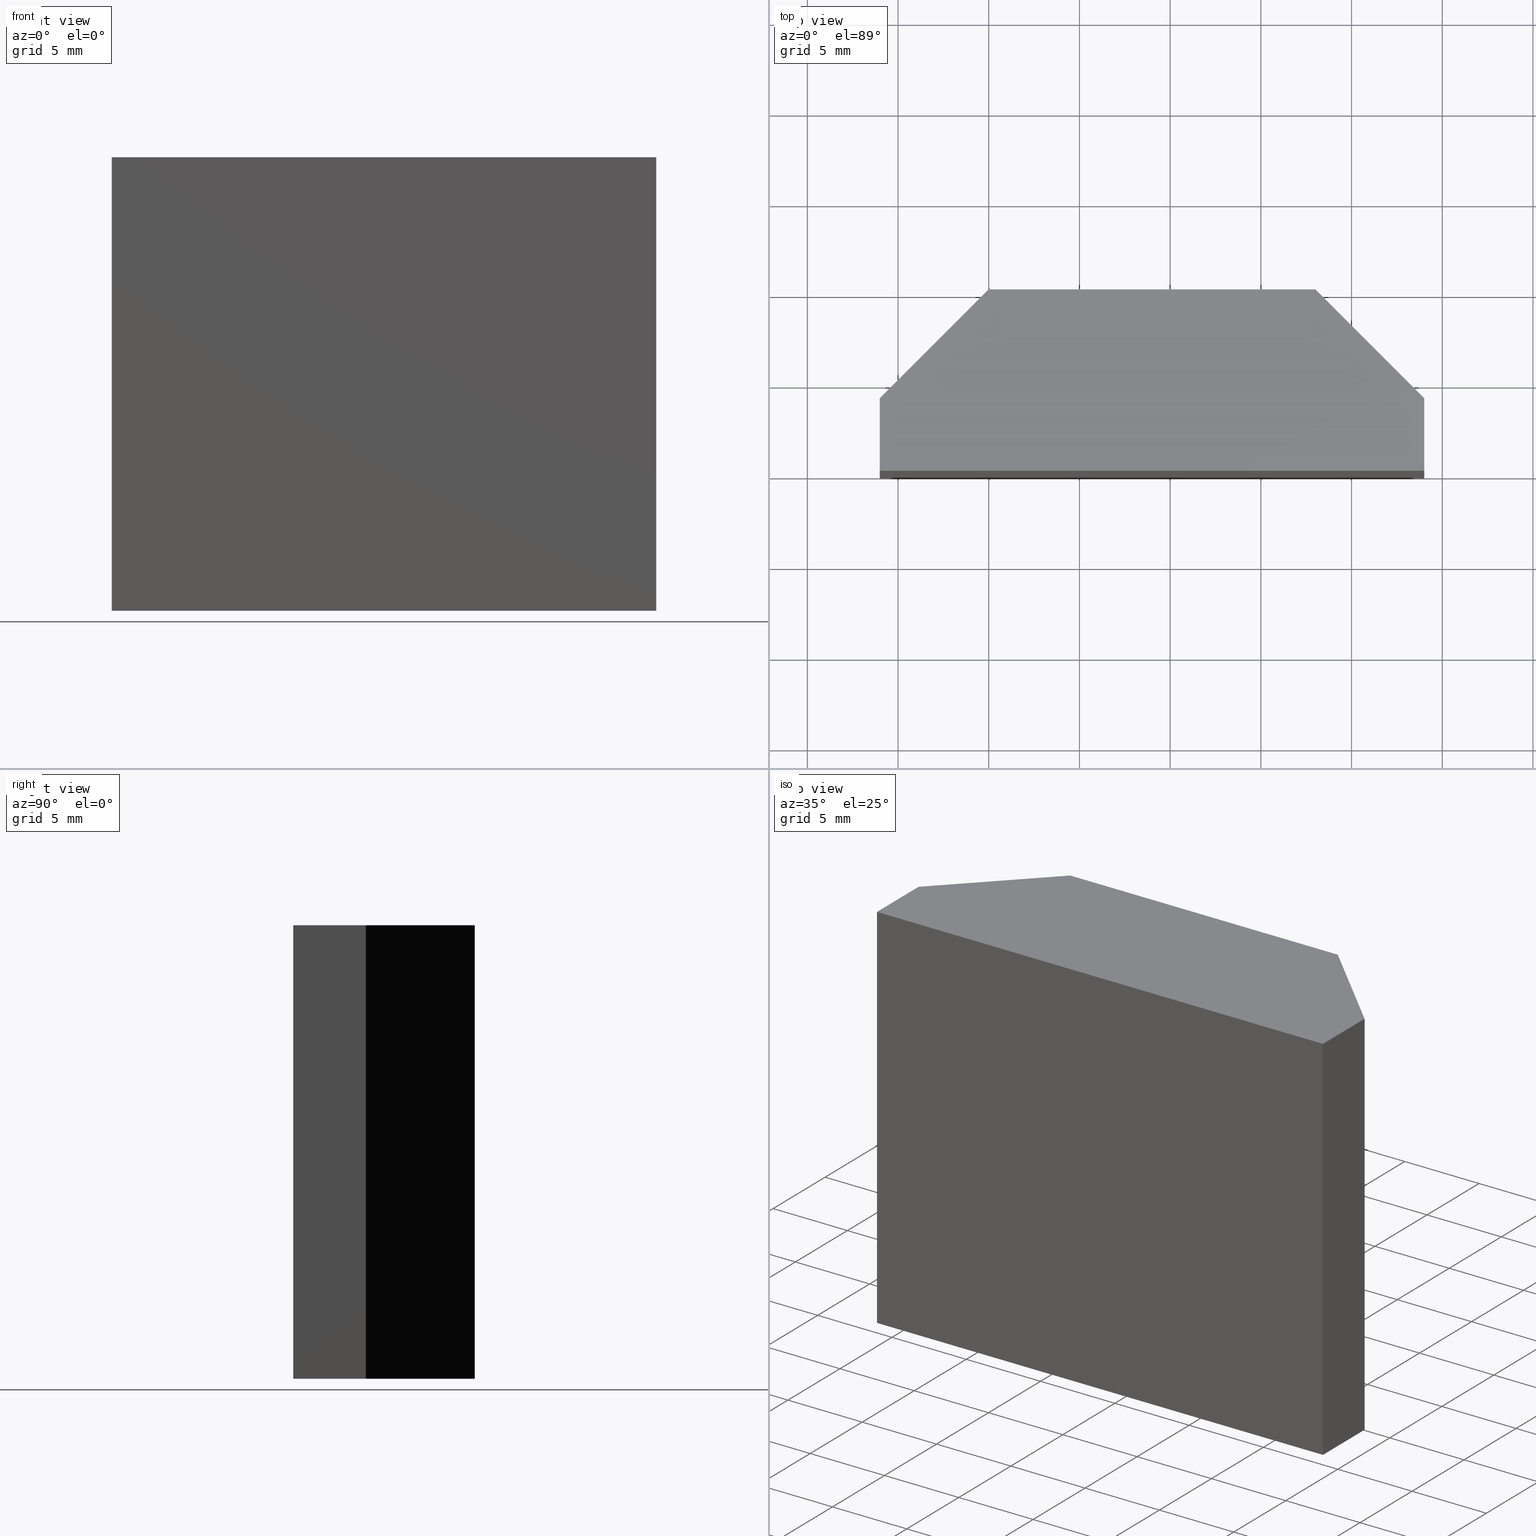
[diagram: canonical four-view strip — front | top / right | iso, engineering-drawing reading convention]
A machine part, canonical four-view strip (front | top / right | iso — engineering-drawing reading convention). The complete STEP part file that produces these views, byte-faithful:
ISO-10303-21;
HEADER;
/* Generated by software containing ST-Developer
 * from STEP Tools, Inc. (www.steptools.com) 
 */

FILE_DESCRIPTION(
/* description */ (''),
/* implementation_level */ '2;1');

FILE_NAME(
/* name */ 'E_3_01_06_00_00_WKZ-0154.stp',
/* time_stamp */ '2025-11-24T11:59:07+01:00',
/* author */ ('d.fischer'),
/* organization */ (''),
/* preprocessor_version */ 'ST-DEVELOPER v20',
/* originating_system */ 'Autodesk Inventor 2025',
/* authorisation */ '');

FILE_SCHEMA (('AUTOMOTIVE_DESIGN { 1 0 10303 214 3 1 1 }'));
ENDSEC;

DATA;
#10=MECHANICAL_DESIGN_GEOMETRIC_PRESENTATION_REPRESENTATION('',(#38,#39),
#1173);
#11=ITEM_DEFINED_TRANSFORMATION($,$,#753,#796);
#12=ITEM_DEFINED_TRANSFORMATION($,$,#772,#797);
#13=(
REPRESENTATION_RELATIONSHIP($,$,#1187,#1186)
REPRESENTATION_RELATIONSHIP_WITH_TRANSFORMATION(#11)
SHAPE_REPRESENTATION_RELATIONSHIP()
);
#14=(
REPRESENTATION_RELATIONSHIP($,$,#1188,#1186)
REPRESENTATION_RELATIONSHIP_WITH_TRANSFORMATION(#12)
SHAPE_REPRESENTATION_RELATIONSHIP()
);
#15=CONTEXT_DEPENDENT_SHAPE_REPRESENTATION(#13,#1184);
#16=CONTEXT_DEPENDENT_SHAPE_REPRESENTATION(#14,#1185);
#17=NEXT_ASSEMBLY_USAGE_OCCURRENCE('E_3_01_06_00_00_WKZ-0154-Teil2:1',
'E_3_01_06_00_00_WKZ-0154-Teil2:1','E_3_01_06_00_00_WKZ-0154-Teil2:1',#1190,
#1191,'E_3_01_06_00_00_WKZ-0154-Teil2:1');
#18=NEXT_ASSEMBLY_USAGE_OCCURRENCE('E_3_01_06_00_00_WKZ-0154-Teil1:1',
'E_3_01_06_00_00_WKZ-0154-Teil1:1','E_3_01_06_00_00_WKZ-0154-Teil1:1',#1190,
#1192,'E_3_01_06_00_00_WKZ-0154-Teil1:1');
#19=FACE_BOUND('',#99,.T.);
#20=FACE_BOUND('',#100,.T.);
#21=FACE_BOUND('',#101,.T.);
#22=FACE_BOUND('',#103,.T.);
#23=FACE_BOUND('',#104,.T.);
#24=FACE_BOUND('',#105,.T.);
#25=CIRCLE('',#774,1.);
#26=CIRCLE('',#775,1.);
#27=CIRCLE('',#777,1.);
#28=CIRCLE('',#778,1.);
#29=CIRCLE('',#780,1.);
#30=CIRCLE('',#781,1.);
#31=CYLINDRICAL_SURFACE('',#773,1.);
#32=CYLINDRICAL_SURFACE('',#776,1.);
#33=CYLINDRICAL_SURFACE('',#779,1.);
#34=SHAPE_REPRESENTATION_RELATIONSHIP('SRR','None',#1187,#36);
#35=SHAPE_REPRESENTATION_RELATIONSHIP('SRR','None',#1188,#37);
#36=ADVANCED_BREP_SHAPE_REPRESENTATION('',(#40),#1171);
#37=ADVANCED_BREP_SHAPE_REPRESENTATION('',(#41),#1172);
#38=STYLED_ITEM('',(#716),#40);
#39=STYLED_ITEM('',(#717),#41);
#40=MANIFOLD_SOLID_BREP('Volumenk\X\F6rper1',#688);
#41=MANIFOLD_SOLID_BREP('Volumenk\X\F6rper1',#689);
#42=FACE_OUTER_BOUND('',#77,.T.);
#43=FACE_OUTER_BOUND('',#78,.T.);
#44=FACE_OUTER_BOUND('',#79,.T.);
#45=FACE_OUTER_BOUND('',#80,.T.);
#46=FACE_OUTER_BOUND('',#81,.T.);
#47=FACE_OUTER_BOUND('',#82,.T.);
#48=FACE_OUTER_BOUND('',#83,.T.);
#49=FACE_OUTER_BOUND('',#84,.T.);
#50=FACE_OUTER_BOUND('',#85,.T.);
#51=FACE_OUTER_BOUND('',#86,.T.);
#52=FACE_OUTER_BOUND('',#87,.T.);
#53=FACE_OUTER_BOUND('',#88,.T.);
#54=FACE_OUTER_BOUND('',#89,.T.);
#55=FACE_OUTER_BOUND('',#90,.T.);
#56=FACE_OUTER_BOUND('',#91,.T.);
#57=FACE_OUTER_BOUND('',#92,.T.);
#58=FACE_OUTER_BOUND('',#93,.T.);
#59=FACE_OUTER_BOUND('',#94,.T.);
#60=FACE_OUTER_BOUND('',#95,.T.);
#61=FACE_OUTER_BOUND('',#96,.T.);
#62=FACE_OUTER_BOUND('',#97,.T.);
#63=FACE_OUTER_BOUND('',#98,.T.);
#64=FACE_OUTER_BOUND('',#102,.T.);
#65=FACE_OUTER_BOUND('',#106,.T.);
#66=FACE_OUTER_BOUND('',#107,.T.);
#67=FACE_OUTER_BOUND('',#108,.T.);
#68=FACE_OUTER_BOUND('',#109,.T.);
#69=FACE_OUTER_BOUND('',#110,.T.);
#70=FACE_OUTER_BOUND('',#111,.T.);
#71=FACE_OUTER_BOUND('',#112,.T.);
#72=FACE_OUTER_BOUND('',#113,.T.);
#73=FACE_OUTER_BOUND('',#114,.T.);
#74=FACE_OUTER_BOUND('',#115,.T.);
#75=FACE_OUTER_BOUND('',#116,.T.);
#76=FACE_OUTER_BOUND('',#117,.T.);
#77=EDGE_LOOP('',(#439,#440,#441,#442));
#78=EDGE_LOOP('',(#443,#444,#445,#446));
#79=EDGE_LOOP('',(#447,#448,#449,#450));
#80=EDGE_LOOP('',(#451,#452,#453,#454));
#81=EDGE_LOOP('',(#455,#456,#457,#458));
#82=EDGE_LOOP('',(#459,#460,#461,#462));
#83=EDGE_LOOP('',(#463,#464,#465,#466));
#84=EDGE_LOOP('',(#467,#468,#469,#470));
#85=EDGE_LOOP('',(#471,#472,#473,#474,#475,#476,#477,#478));
#86=EDGE_LOOP('',(#479,#480,#481,#482,#483,#484,#485,#486,#487,#488,#489,
#490));
#87=EDGE_LOOP('',(#491,#492,#493,#494,#495,#496,#497,#498));
#88=EDGE_LOOP('',(#499,#500,#501,#502));
#89=EDGE_LOOP('',(#503,#504,#505,#506));
#90=EDGE_LOOP('',(#507,#508,#509,#510));
#91=EDGE_LOOP('',(#511,#512,#513,#514,#515));
#92=EDGE_LOOP('',(#516,#517,#518,#519));
#93=EDGE_LOOP('',(#520,#521,#522,#523,#524));
#94=EDGE_LOOP('',(#525,#526,#527,#528,#529,#530));
#95=EDGE_LOOP('',(#531,#532,#533,#534));
#96=EDGE_LOOP('',(#535,#536,#537,#538));
#97=EDGE_LOOP('',(#539,#540,#541,#542));
#98=EDGE_LOOP('',(#543,#544,#545,#546));
#99=EDGE_LOOP('',(#547));
#100=EDGE_LOOP('',(#548));
#101=EDGE_LOOP('',(#549));
#102=EDGE_LOOP('',(#550,#551,#552,#553));
#103=EDGE_LOOP('',(#554));
#104=EDGE_LOOP('',(#555));
#105=EDGE_LOOP('',(#556));
#106=EDGE_LOOP('',(#557,#558,#559,#560));
#107=EDGE_LOOP('',(#561,#562,#563,#564));
#108=EDGE_LOOP('',(#565,#566,#567,#568));
#109=EDGE_LOOP('',(#569,#570,#571,#572));
#110=EDGE_LOOP('',(#573,#574,#575,#576));
#111=EDGE_LOOP('',(#577,#578,#579,#580));
#112=EDGE_LOOP('',(#581,#582,#583,#584));
#113=EDGE_LOOP('',(#585,#586,#587,#588));
#114=EDGE_LOOP('',(#589,#590,#591,#592,#593,#594,#595,#596,#597,#598,#599,
#600));
#115=EDGE_LOOP('',(#601,#602,#603,#604));
#116=EDGE_LOOP('',(#605,#606,#607,#608,#609,#610,#611,#612));
#117=EDGE_LOOP('',(#613,#614,#615,#616,#617,#618,#619,#620));
#118=LINE('',#980,#203);
#119=LINE('',#982,#204);
#120=LINE('',#984,#205);
#121=LINE('',#985,#206);
#122=LINE('',#989,#207);
#123=LINE('',#991,#208);
#124=LINE('',#993,#209);
#125=LINE('',#994,#210);
#126=LINE('',#997,#211);
#127=LINE('',#999,#212);
#128=LINE('',#1000,#213);
#129=LINE('',#1003,#214);
#130=LINE('',#1005,#215);
#131=LINE('',#1006,#216);
#132=LINE('',#1009,#217);
#133=LINE('',#1010,#218);
#134=LINE('',#1013,#219);
#135=LINE('',#1014,#220);
#136=LINE('',#1017,#221);
#137=LINE('',#1018,#222);
#138=LINE('',#1021,#223);
#139=LINE('',#1022,#224);
#140=LINE('',#1025,#225);
#141=LINE('',#1027,#226);
#142=LINE('',#1029,#227);
#143=LINE('',#1031,#228);
#144=LINE('',#1032,#229);
#145=LINE('',#1035,#230);
#146=LINE('',#1036,#231);
#147=LINE('',#1038,#232);
#148=LINE('',#1039,#233);
#149=LINE('',#1042,#234);
#150=LINE('',#1044,#235);
#151=LINE('',#1045,#236);
#152=LINE('',#1048,#237);
#153=LINE('',#1050,#238);
#154=LINE('',#1051,#239);
#155=LINE('',#1054,#240);
#156=LINE('',#1055,#241);
#157=LINE('',#1058,#242);
#158=LINE('',#1059,#243);
#159=LINE('',#1062,#244);
#160=LINE('',#1063,#245);
#161=LINE('',#1066,#246);
#162=LINE('',#1067,#247);
#163=LINE('',#1069,#248);
#164=LINE('',#1076,#249);
#165=LINE('',#1082,#250);
#166=LINE('',#1088,#251);
#167=LINE('',#1093,#252);
#168=LINE('',#1095,#253);
#169=LINE('',#1097,#254);
#170=LINE('',#1098,#255);
#171=LINE('',#1102,#256);
#172=LINE('',#1104,#257);
#173=LINE('',#1106,#258);
#174=LINE('',#1107,#259);
#175=LINE('',#1110,#260);
#176=LINE('',#1112,#261);
#177=LINE('',#1113,#262);
#178=LINE('',#1116,#263);
#179=LINE('',#1117,#264);
#180=LINE('',#1120,#265);
#181=LINE('',#1122,#266);
#182=LINE('',#1123,#267);
#183=LINE('',#1127,#268);
#184=LINE('',#1129,#269);
#185=LINE('',#1131,#270);
#186=LINE('',#1132,#271);
#187=LINE('',#1135,#272);
#188=LINE('',#1137,#273);
#189=LINE('',#1138,#274);
#190=LINE('',#1141,#275);
#191=LINE('',#1142,#276);
#192=LINE('',#1145,#277);
#193=LINE('',#1146,#278);
#194=LINE('',#1149,#279);
#195=LINE('',#1150,#280);
#196=LINE('',#1153,#281);
#197=LINE('',#1155,#282);
#198=LINE('',#1156,#283);
#199=LINE('',#1157,#284);
#200=LINE('',#1158,#285);
#201=LINE('',#1160,#286);
#202=LINE('',#1161,#287);
#203=VECTOR('',#804,10.);
#204=VECTOR('',#805,10.);
#205=VECTOR('',#806,10.);
#206=VECTOR('',#807,10.);
#207=VECTOR('',#810,10.);
#208=VECTOR('',#811,10.);
#209=VECTOR('',#812,10.);
#210=VECTOR('',#813,10.);
#211=VECTOR('',#816,10.);
#212=VECTOR('',#817,10.);
#213=VECTOR('',#818,10.);
#214=VECTOR('',#821,10.);
#215=VECTOR('',#822,10.);
#216=VECTOR('',#823,10.);
#217=VECTOR('',#826,10.);
#218=VECTOR('',#827,10.);
#219=VECTOR('',#830,10.);
#220=VECTOR('',#831,10.);
#221=VECTOR('',#834,10.);
#222=VECTOR('',#835,10.);
#223=VECTOR('',#838,10.);
#224=VECTOR('',#839,10.);
#225=VECTOR('',#842,10.);
#226=VECTOR('',#843,10.);
#227=VECTOR('',#844,10.);
#228=VECTOR('',#845,10.);
#229=VECTOR('',#846,10.);
#230=VECTOR('',#849,10.);
#231=VECTOR('',#850,10.);
#232=VECTOR('',#851,10.);
#233=VECTOR('',#852,10.);
#234=VECTOR('',#855,10.);
#235=VECTOR('',#856,10.);
#236=VECTOR('',#857,10.);
#237=VECTOR('',#860,10.);
#238=VECTOR('',#861,10.);
#239=VECTOR('',#862,10.);
#240=VECTOR('',#865,10.);
#241=VECTOR('',#866,10.);
#242=VECTOR('',#869,10.);
#243=VECTOR('',#870,10.);
#244=VECTOR('',#873,10.);
#245=VECTOR('',#874,10.);
#246=VECTOR('',#877,10.);
#247=VECTOR('',#878,10.);
#248=VECTOR('',#881,10.);
#249=VECTOR('',#890,1.);
#250=VECTOR('',#897,1.);
#251=VECTOR('',#904,1.);
#252=VECTOR('',#909,10.);
#253=VECTOR('',#910,10.);
#254=VECTOR('',#911,10.);
#255=VECTOR('',#912,10.);
#256=VECTOR('',#915,10.);
#257=VECTOR('',#916,10.);
#258=VECTOR('',#917,10.);
#259=VECTOR('',#918,10.);
#260=VECTOR('',#921,10.);
#261=VECTOR('',#922,10.);
#262=VECTOR('',#923,10.);
#263=VECTOR('',#926,10.);
#264=VECTOR('',#927,10.);
#265=VECTOR('',#930,10.);
#266=VECTOR('',#931,10.);
#267=VECTOR('',#932,10.);
#268=VECTOR('',#935,10.);
#269=VECTOR('',#936,10.);
#270=VECTOR('',#937,10.);
#271=VECTOR('',#938,10.);
#272=VECTOR('',#941,10.);
#273=VECTOR('',#942,10.);
#274=VECTOR('',#943,10.);
#275=VECTOR('',#946,10.);
#276=VECTOR('',#947,10.);
#277=VECTOR('',#950,10.);
#278=VECTOR('',#951,10.);
#279=VECTOR('',#954,10.);
#280=VECTOR('',#955,10.);
#281=VECTOR('',#958,10.);
#282=VECTOR('',#959,10.);
#283=VECTOR('',#960,10.);
#284=VECTOR('',#961,10.);
#285=VECTOR('',#962,10.);
#286=VECTOR('',#965,10.);
#287=VECTOR('',#966,10.);
#288=VERTEX_POINT('',#978);
#289=VERTEX_POINT('',#979);
#290=VERTEX_POINT('',#981);
#291=VERTEX_POINT('',#983);
#292=VERTEX_POINT('',#987);
#293=VERTEX_POINT('',#988);
#294=VERTEX_POINT('',#990);
#295=VERTEX_POINT('',#992);
#296=VERTEX_POINT('',#996);
#297=VERTEX_POINT('',#998);
#298=VERTEX_POINT('',#1002);
#299=VERTEX_POINT('',#1004);
#300=VERTEX_POINT('',#1008);
#301=VERTEX_POINT('',#1012);
#302=VERTEX_POINT('',#1016);
#303=VERTEX_POINT('',#1020);
#304=VERTEX_POINT('',#1024);
#305=VERTEX_POINT('',#1026);
#306=VERTEX_POINT('',#1028);
#307=VERTEX_POINT('',#1030);
#308=VERTEX_POINT('',#1034);
#309=VERTEX_POINT('',#1037);
#310=VERTEX_POINT('',#1041);
#311=VERTEX_POINT('',#1043);
#312=VERTEX_POINT('',#1047);
#313=VERTEX_POINT('',#1049);
#314=VERTEX_POINT('',#1053);
#315=VERTEX_POINT('',#1057);
#316=VERTEX_POINT('',#1061);
#317=VERTEX_POINT('',#1065);
#318=VERTEX_POINT('',#1073);
#319=VERTEX_POINT('',#1075);
#320=VERTEX_POINT('',#1079);
#321=VERTEX_POINT('',#1081);
#322=VERTEX_POINT('',#1085);
#323=VERTEX_POINT('',#1087);
#324=VERTEX_POINT('',#1091);
#325=VERTEX_POINT('',#1092);
#326=VERTEX_POINT('',#1094);
#327=VERTEX_POINT('',#1096);
#328=VERTEX_POINT('',#1100);
#329=VERTEX_POINT('',#1101);
#330=VERTEX_POINT('',#1103);
#331=VERTEX_POINT('',#1105);
#332=VERTEX_POINT('',#1109);
#333=VERTEX_POINT('',#1111);
#334=VERTEX_POINT('',#1115);
#335=VERTEX_POINT('',#1119);
#336=VERTEX_POINT('',#1121);
#337=VERTEX_POINT('',#1125);
#338=VERTEX_POINT('',#1126);
#339=VERTEX_POINT('',#1128);
#340=VERTEX_POINT('',#1130);
#341=VERTEX_POINT('',#1134);
#342=VERTEX_POINT('',#1136);
#343=VERTEX_POINT('',#1140);
#344=VERTEX_POINT('',#1144);
#345=VERTEX_POINT('',#1148);
#346=VERTEX_POINT('',#1152);
#347=VERTEX_POINT('',#1154);
#348=EDGE_CURVE('',#288,#289,#118,.T.);
#349=EDGE_CURVE('',#290,#288,#119,.T.);
#350=EDGE_CURVE('',#291,#290,#120,.T.);
#351=EDGE_CURVE('',#291,#289,#121,.T.);
#352=EDGE_CURVE('',#292,#293,#122,.T.);
#353=EDGE_CURVE('',#294,#292,#123,.T.);
#354=EDGE_CURVE('',#295,#294,#124,.T.);
#355=EDGE_CURVE('',#293,#295,#125,.T.);
#356=EDGE_CURVE('',#289,#296,#126,.T.);
#357=EDGE_CURVE('',#297,#296,#127,.T.);
#358=EDGE_CURVE('',#288,#297,#128,.T.);
#359=EDGE_CURVE('',#298,#295,#129,.T.);
#360=EDGE_CURVE('',#299,#298,#130,.T.);
#361=EDGE_CURVE('',#299,#293,#131,.T.);
#362=EDGE_CURVE('',#300,#297,#132,.T.);
#363=EDGE_CURVE('',#290,#300,#133,.T.);
#364=EDGE_CURVE('',#301,#294,#134,.T.);
#365=EDGE_CURVE('',#298,#301,#135,.T.);
#366=EDGE_CURVE('',#302,#300,#136,.T.);
#367=EDGE_CURVE('',#291,#302,#137,.T.);
#368=EDGE_CURVE('',#303,#292,#138,.T.);
#369=EDGE_CURVE('',#301,#303,#139,.T.);
#370=EDGE_CURVE('',#296,#304,#140,.T.);
#371=EDGE_CURVE('',#305,#304,#141,.T.);
#372=EDGE_CURVE('',#306,#305,#142,.T.);
#373=EDGE_CURVE('',#307,#306,#143,.T.);
#374=EDGE_CURVE('',#307,#302,#144,.T.);
#375=EDGE_CURVE('',#308,#299,#145,.T.);
#376=EDGE_CURVE('',#304,#308,#146,.T.);
#377=EDGE_CURVE('',#307,#309,#147,.T.);
#378=EDGE_CURVE('',#303,#309,#148,.T.);
#379=EDGE_CURVE('',#310,#309,#149,.T.);
#380=EDGE_CURVE('',#311,#310,#150,.T.);
#381=EDGE_CURVE('',#308,#311,#151,.T.);
#382=EDGE_CURVE('',#312,#305,#152,.T.);
#383=EDGE_CURVE('',#312,#313,#153,.T.);
#384=EDGE_CURVE('',#313,#306,#154,.T.);
#385=EDGE_CURVE('',#314,#304,#155,.T.);
#386=EDGE_CURVE('',#314,#312,#156,.T.);
#387=EDGE_CURVE('',#313,#315,#157,.T.);
#388=EDGE_CURVE('',#315,#307,#158,.T.);
#389=EDGE_CURVE('',#316,#311,#159,.T.);
#390=EDGE_CURVE('',#316,#314,#160,.T.);
#391=EDGE_CURVE('',#317,#310,#161,.T.);
#392=EDGE_CURVE('',#317,#316,#162,.T.);
#393=EDGE_CURVE('',#315,#317,#163,.T.);
#394=EDGE_CURVE('',#318,#318,#25,.T.);
#395=EDGE_CURVE('',#318,#319,#164,.T.);
#396=EDGE_CURVE('',#319,#319,#26,.T.);
#397=EDGE_CURVE('',#320,#320,#27,.T.);
#398=EDGE_CURVE('',#320,#321,#165,.T.);
#399=EDGE_CURVE('',#321,#321,#28,.T.);
#400=EDGE_CURVE('',#322,#322,#29,.T.);
#401=EDGE_CURVE('',#322,#323,#166,.T.);
#402=EDGE_CURVE('',#323,#323,#30,.T.);
#403=EDGE_CURVE('',#324,#325,#167,.T.);
#404=EDGE_CURVE('',#326,#324,#168,.T.);
#405=EDGE_CURVE('',#327,#326,#169,.T.);
#406=EDGE_CURVE('',#325,#327,#170,.T.);
#407=EDGE_CURVE('',#328,#329,#171,.T.);
#408=EDGE_CURVE('',#330,#328,#172,.T.);
#409=EDGE_CURVE('',#331,#330,#173,.T.);
#410=EDGE_CURVE('',#329,#331,#174,.T.);
#411=EDGE_CURVE('',#324,#332,#175,.T.);
#412=EDGE_CURVE('',#332,#333,#176,.T.);
#413=EDGE_CURVE('',#326,#333,#177,.T.);
#414=EDGE_CURVE('',#325,#334,#178,.T.);
#415=EDGE_CURVE('',#334,#332,#179,.T.);
#416=EDGE_CURVE('',#335,#330,#180,.T.);
#417=EDGE_CURVE('',#335,#336,#181,.T.);
#418=EDGE_CURVE('',#336,#331,#182,.T.);
#419=EDGE_CURVE('',#337,#338,#183,.T.);
#420=EDGE_CURVE('',#339,#338,#184,.T.);
#421=EDGE_CURVE('',#339,#340,#185,.T.);
#422=EDGE_CURVE('',#340,#337,#186,.T.);
#423=EDGE_CURVE('',#338,#341,#187,.T.);
#424=EDGE_CURVE('',#342,#341,#188,.T.);
#425=EDGE_CURVE('',#342,#339,#189,.T.);
#426=EDGE_CURVE('',#327,#343,#190,.T.);
#427=EDGE_CURVE('',#343,#334,#191,.T.);
#428=EDGE_CURVE('',#344,#328,#192,.T.);
#429=EDGE_CURVE('',#344,#335,#193,.T.);
#430=EDGE_CURVE('',#345,#329,#194,.T.);
#431=EDGE_CURVE('',#345,#344,#195,.T.);
#432=EDGE_CURVE('',#333,#346,#196,.T.);
#433=EDGE_CURVE('',#347,#346,#197,.T.);
#434=EDGE_CURVE('',#347,#345,#198,.T.);
#435=EDGE_CURVE('',#336,#342,#199,.T.);
#436=EDGE_CURVE('',#341,#343,#200,.T.);
#437=EDGE_CURVE('',#346,#337,#201,.T.);
#438=EDGE_CURVE('',#340,#347,#202,.T.);
#439=ORIENTED_EDGE('',*,*,#348,.F.);
#440=ORIENTED_EDGE('',*,*,#349,.F.);
#441=ORIENTED_EDGE('',*,*,#350,.F.);
#442=ORIENTED_EDGE('',*,*,#351,.T.);
#443=ORIENTED_EDGE('',*,*,#352,.F.);
#444=ORIENTED_EDGE('',*,*,#353,.F.);
#445=ORIENTED_EDGE('',*,*,#354,.F.);
#446=ORIENTED_EDGE('',*,*,#355,.F.);
#447=ORIENTED_EDGE('',*,*,#348,.T.);
#448=ORIENTED_EDGE('',*,*,#356,.T.);
#449=ORIENTED_EDGE('',*,*,#357,.F.);
#450=ORIENTED_EDGE('',*,*,#358,.F.);
#451=ORIENTED_EDGE('',*,*,#355,.T.);
#452=ORIENTED_EDGE('',*,*,#359,.F.);
#453=ORIENTED_EDGE('',*,*,#360,.F.);
#454=ORIENTED_EDGE('',*,*,#361,.T.);
#455=ORIENTED_EDGE('',*,*,#349,.T.);
#456=ORIENTED_EDGE('',*,*,#358,.T.);
#457=ORIENTED_EDGE('',*,*,#362,.F.);
#458=ORIENTED_EDGE('',*,*,#363,.F.);
#459=ORIENTED_EDGE('',*,*,#354,.T.);
#460=ORIENTED_EDGE('',*,*,#364,.F.);
#461=ORIENTED_EDGE('',*,*,#365,.F.);
#462=ORIENTED_EDGE('',*,*,#359,.T.);
#463=ORIENTED_EDGE('',*,*,#350,.T.);
#464=ORIENTED_EDGE('',*,*,#363,.T.);
#465=ORIENTED_EDGE('',*,*,#366,.F.);
#466=ORIENTED_EDGE('',*,*,#367,.F.);
#467=ORIENTED_EDGE('',*,*,#353,.T.);
#468=ORIENTED_EDGE('',*,*,#368,.F.);
#469=ORIENTED_EDGE('',*,*,#369,.F.);
#470=ORIENTED_EDGE('',*,*,#364,.T.);
#471=ORIENTED_EDGE('',*,*,#366,.T.);
#472=ORIENTED_EDGE('',*,*,#362,.T.);
#473=ORIENTED_EDGE('',*,*,#357,.T.);
#474=ORIENTED_EDGE('',*,*,#370,.T.);
#475=ORIENTED_EDGE('',*,*,#371,.F.);
#476=ORIENTED_EDGE('',*,*,#372,.F.);
#477=ORIENTED_EDGE('',*,*,#373,.F.);
#478=ORIENTED_EDGE('',*,*,#374,.T.);
#479=ORIENTED_EDGE('',*,*,#361,.F.);
#480=ORIENTED_EDGE('',*,*,#375,.F.);
#481=ORIENTED_EDGE('',*,*,#376,.F.);
#482=ORIENTED_EDGE('',*,*,#370,.F.);
#483=ORIENTED_EDGE('',*,*,#356,.F.);
#484=ORIENTED_EDGE('',*,*,#351,.F.);
#485=ORIENTED_EDGE('',*,*,#367,.T.);
#486=ORIENTED_EDGE('',*,*,#374,.F.);
#487=ORIENTED_EDGE('',*,*,#377,.T.);
#488=ORIENTED_EDGE('',*,*,#378,.F.);
#489=ORIENTED_EDGE('',*,*,#368,.T.);
#490=ORIENTED_EDGE('',*,*,#352,.T.);
#491=ORIENTED_EDGE('',*,*,#375,.T.);
#492=ORIENTED_EDGE('',*,*,#360,.T.);
#493=ORIENTED_EDGE('',*,*,#365,.T.);
#494=ORIENTED_EDGE('',*,*,#369,.T.);
#495=ORIENTED_EDGE('',*,*,#378,.T.);
#496=ORIENTED_EDGE('',*,*,#379,.F.);
#497=ORIENTED_EDGE('',*,*,#380,.F.);
#498=ORIENTED_EDGE('',*,*,#381,.F.);
#499=ORIENTED_EDGE('',*,*,#372,.T.);
#500=ORIENTED_EDGE('',*,*,#382,.F.);
#501=ORIENTED_EDGE('',*,*,#383,.T.);
#502=ORIENTED_EDGE('',*,*,#384,.T.);
#503=ORIENTED_EDGE('',*,*,#371,.T.);
#504=ORIENTED_EDGE('',*,*,#385,.F.);
#505=ORIENTED_EDGE('',*,*,#386,.T.);
#506=ORIENTED_EDGE('',*,*,#382,.T.);
#507=ORIENTED_EDGE('',*,*,#373,.T.);
#508=ORIENTED_EDGE('',*,*,#384,.F.);
#509=ORIENTED_EDGE('',*,*,#387,.T.);
#510=ORIENTED_EDGE('',*,*,#388,.T.);
#511=ORIENTED_EDGE('',*,*,#381,.T.);
#512=ORIENTED_EDGE('',*,*,#389,.F.);
#513=ORIENTED_EDGE('',*,*,#390,.T.);
#514=ORIENTED_EDGE('',*,*,#385,.T.);
#515=ORIENTED_EDGE('',*,*,#376,.T.);
#516=ORIENTED_EDGE('',*,*,#380,.T.);
#517=ORIENTED_EDGE('',*,*,#391,.F.);
#518=ORIENTED_EDGE('',*,*,#392,.T.);
#519=ORIENTED_EDGE('',*,*,#389,.T.);
#520=ORIENTED_EDGE('',*,*,#379,.T.);
#521=ORIENTED_EDGE('',*,*,#377,.F.);
#522=ORIENTED_EDGE('',*,*,#388,.F.);
#523=ORIENTED_EDGE('',*,*,#393,.T.);
#524=ORIENTED_EDGE('',*,*,#391,.T.);
#525=ORIENTED_EDGE('',*,*,#393,.F.);
#526=ORIENTED_EDGE('',*,*,#387,.F.);
#527=ORIENTED_EDGE('',*,*,#383,.F.);
#528=ORIENTED_EDGE('',*,*,#386,.F.);
#529=ORIENTED_EDGE('',*,*,#390,.F.);
#530=ORIENTED_EDGE('',*,*,#392,.F.);
#531=ORIENTED_EDGE('',*,*,#394,.F.);
#532=ORIENTED_EDGE('',*,*,#395,.T.);
#533=ORIENTED_EDGE('',*,*,#396,.F.);
#534=ORIENTED_EDGE('',*,*,#395,.F.);
#535=ORIENTED_EDGE('',*,*,#397,.F.);
#536=ORIENTED_EDGE('',*,*,#398,.T.);
#537=ORIENTED_EDGE('',*,*,#399,.F.);
#538=ORIENTED_EDGE('',*,*,#398,.F.);
#539=ORIENTED_EDGE('',*,*,#400,.F.);
#540=ORIENTED_EDGE('',*,*,#401,.T.);
#541=ORIENTED_EDGE('',*,*,#402,.F.);
#542=ORIENTED_EDGE('',*,*,#401,.F.);
#543=ORIENTED_EDGE('',*,*,#403,.F.);
#544=ORIENTED_EDGE('',*,*,#404,.F.);
#545=ORIENTED_EDGE('',*,*,#405,.F.);
#546=ORIENTED_EDGE('',*,*,#406,.F.);
#547=ORIENTED_EDGE('',*,*,#394,.T.);
#548=ORIENTED_EDGE('',*,*,#397,.T.);
#549=ORIENTED_EDGE('',*,*,#400,.T.);
#550=ORIENTED_EDGE('',*,*,#407,.F.);
#551=ORIENTED_EDGE('',*,*,#408,.F.);
#552=ORIENTED_EDGE('',*,*,#409,.F.);
#553=ORIENTED_EDGE('',*,*,#410,.F.);
#554=ORIENTED_EDGE('',*,*,#396,.T.);
#555=ORIENTED_EDGE('',*,*,#399,.T.);
#556=ORIENTED_EDGE('',*,*,#402,.T.);
#557=ORIENTED_EDGE('',*,*,#404,.T.);
#558=ORIENTED_EDGE('',*,*,#411,.T.);
#559=ORIENTED_EDGE('',*,*,#412,.T.);
#560=ORIENTED_EDGE('',*,*,#413,.F.);
#561=ORIENTED_EDGE('',*,*,#403,.T.);
#562=ORIENTED_EDGE('',*,*,#414,.T.);
#563=ORIENTED_EDGE('',*,*,#415,.T.);
#564=ORIENTED_EDGE('',*,*,#411,.F.);
#565=ORIENTED_EDGE('',*,*,#409,.T.);
#566=ORIENTED_EDGE('',*,*,#416,.F.);
#567=ORIENTED_EDGE('',*,*,#417,.T.);
#568=ORIENTED_EDGE('',*,*,#418,.T.);
#569=ORIENTED_EDGE('',*,*,#419,.T.);
#570=ORIENTED_EDGE('',*,*,#420,.F.);
#571=ORIENTED_EDGE('',*,*,#421,.T.);
#572=ORIENTED_EDGE('',*,*,#422,.T.);
#573=ORIENTED_EDGE('',*,*,#423,.T.);
#574=ORIENTED_EDGE('',*,*,#424,.F.);
#575=ORIENTED_EDGE('',*,*,#425,.T.);
#576=ORIENTED_EDGE('',*,*,#420,.T.);
#577=ORIENTED_EDGE('',*,*,#406,.T.);
#578=ORIENTED_EDGE('',*,*,#426,.T.);
#579=ORIENTED_EDGE('',*,*,#427,.T.);
#580=ORIENTED_EDGE('',*,*,#414,.F.);
#581=ORIENTED_EDGE('',*,*,#408,.T.);
#582=ORIENTED_EDGE('',*,*,#428,.F.);
#583=ORIENTED_EDGE('',*,*,#429,.T.);
#584=ORIENTED_EDGE('',*,*,#416,.T.);
#585=ORIENTED_EDGE('',*,*,#407,.T.);
#586=ORIENTED_EDGE('',*,*,#430,.F.);
#587=ORIENTED_EDGE('',*,*,#431,.T.);
#588=ORIENTED_EDGE('',*,*,#428,.T.);
#589=ORIENTED_EDGE('',*,*,#432,.T.);
#590=ORIENTED_EDGE('',*,*,#433,.F.);
#591=ORIENTED_EDGE('',*,*,#434,.T.);
#592=ORIENTED_EDGE('',*,*,#430,.T.);
#593=ORIENTED_EDGE('',*,*,#410,.T.);
#594=ORIENTED_EDGE('',*,*,#418,.F.);
#595=ORIENTED_EDGE('',*,*,#435,.T.);
#596=ORIENTED_EDGE('',*,*,#424,.T.);
#597=ORIENTED_EDGE('',*,*,#436,.T.);
#598=ORIENTED_EDGE('',*,*,#426,.F.);
#599=ORIENTED_EDGE('',*,*,#405,.T.);
#600=ORIENTED_EDGE('',*,*,#413,.T.);
#601=ORIENTED_EDGE('',*,*,#437,.T.);
#602=ORIENTED_EDGE('',*,*,#422,.F.);
#603=ORIENTED_EDGE('',*,*,#438,.T.);
#604=ORIENTED_EDGE('',*,*,#433,.T.);
#605=ORIENTED_EDGE('',*,*,#421,.F.);
#606=ORIENTED_EDGE('',*,*,#425,.F.);
#607=ORIENTED_EDGE('',*,*,#435,.F.);
#608=ORIENTED_EDGE('',*,*,#417,.F.);
#609=ORIENTED_EDGE('',*,*,#429,.F.);
#610=ORIENTED_EDGE('',*,*,#431,.F.);
#611=ORIENTED_EDGE('',*,*,#434,.F.);
#612=ORIENTED_EDGE('',*,*,#438,.F.);
#613=ORIENTED_EDGE('',*,*,#419,.F.);
#614=ORIENTED_EDGE('',*,*,#437,.F.);
#615=ORIENTED_EDGE('',*,*,#432,.F.);
#616=ORIENTED_EDGE('',*,*,#412,.F.);
#617=ORIENTED_EDGE('',*,*,#415,.F.);
#618=ORIENTED_EDGE('',*,*,#427,.F.);
#619=ORIENTED_EDGE('',*,*,#436,.F.);
#620=ORIENTED_EDGE('',*,*,#423,.F.);
#621=PLANE('',#754);
#622=PLANE('',#755);
#623=PLANE('',#756);
#624=PLANE('',#757);
#625=PLANE('',#758);
#626=PLANE('',#759);
#627=PLANE('',#760);
#628=PLANE('',#761);
#629=PLANE('',#762);
#630=PLANE('',#763);
#631=PLANE('',#764);
#632=PLANE('',#765);
#633=PLANE('',#766);
#634=PLANE('',#767);
#635=PLANE('',#768);
#636=PLANE('',#769);
#637=PLANE('',#770);
#638=PLANE('',#771);
#639=PLANE('',#782);
#640=PLANE('',#783);
#641=PLANE('',#784);
#642=PLANE('',#785);
#643=PLANE('',#786);
#644=PLANE('',#787);
#645=PLANE('',#788);
#646=PLANE('',#789);
#647=PLANE('',#790);
#648=PLANE('',#791);
#649=PLANE('',#792);
#650=PLANE('',#793);
#651=PLANE('',#794);
#652=PLANE('',#795);
#653=ADVANCED_FACE('',(#42),#621,.T.);
#654=ADVANCED_FACE('',(#43),#622,.F.);
#655=ADVANCED_FACE('',(#44),#623,.F.);
#656=ADVANCED_FACE('',(#45),#624,.F.);
#657=ADVANCED_FACE('',(#46),#625,.F.);
#658=ADVANCED_FACE('',(#47),#626,.F.);
#659=ADVANCED_FACE('',(#48),#627,.F.);
#660=ADVANCED_FACE('',(#49),#628,.F.);
#661=ADVANCED_FACE('',(#50),#629,.T.);
#662=ADVANCED_FACE('',(#51),#630,.F.);
#663=ADVANCED_FACE('',(#52),#631,.T.);
#664=ADVANCED_FACE('',(#53),#632,.T.);
#665=ADVANCED_FACE('',(#54),#633,.T.);
#666=ADVANCED_FACE('',(#55),#634,.T.);
#667=ADVANCED_FACE('',(#56),#635,.T.);
#668=ADVANCED_FACE('',(#57),#636,.T.);
#669=ADVANCED_FACE('',(#58),#637,.T.);
#670=ADVANCED_FACE('',(#59),#638,.F.);
#671=ADVANCED_FACE('',(#60),#31,.F.);
#672=ADVANCED_FACE('',(#61),#32,.F.);
#673=ADVANCED_FACE('',(#62),#33,.F.);
#674=ADVANCED_FACE('',(#63,#19,#20,#21),#639,.T.);
#675=ADVANCED_FACE('',(#64,#22,#23,#24),#640,.F.);
#676=ADVANCED_FACE('',(#65),#641,.T.);
#677=ADVANCED_FACE('',(#66),#642,.T.);
#678=ADVANCED_FACE('',(#67),#643,.T.);
#679=ADVANCED_FACE('',(#68),#644,.T.);
#680=ADVANCED_FACE('',(#69),#645,.T.);
#681=ADVANCED_FACE('',(#70),#646,.T.);
#682=ADVANCED_FACE('',(#71),#647,.T.);
#683=ADVANCED_FACE('',(#72),#648,.T.);
#684=ADVANCED_FACE('',(#73),#649,.T.);
#685=ADVANCED_FACE('',(#74),#650,.T.);
#686=ADVANCED_FACE('',(#75),#651,.F.);
#687=ADVANCED_FACE('',(#76),#652,.T.);
#688=CLOSED_SHELL('',(#653,#654,#655,#656,#657,#658,#659,#660,#661,#662,
#663,#664,#665,#666,#667,#668,#669,#670));
#689=CLOSED_SHELL('',(#671,#672,#673,#674,#675,#676,#677,#678,#679,#680,
#681,#682,#683,#684,#685,#686,#687));
#690=DERIVED_UNIT_ELEMENT(#695,1.);
#691=DERIVED_UNIT_ELEMENT(#1175,-3.);
#692=DERIVED_UNIT_ELEMENT(#695,1.);
#693=DERIVED_UNIT_ELEMENT(#1175,-3.);
#694=DIMENSIONAL_EXPONENTS(0.,1.,0.,0.,0.,0.,0.);
#695=(
CONVERSION_BASED_UNIT('gram',#697)
MASS_UNIT()
NAMED_UNIT(#694)
);
#696=(
MASS_UNIT()
NAMED_UNIT(*)
SI_UNIT(.KILO.,.GRAM.)
);
#697=MASS_MEASURE_WITH_UNIT(MASS_MEASURE(0.001),#696);
#698=DERIVED_UNIT((#690,#691));
#699=DERIVED_UNIT((#692,#693));
#700=MEASURE_REPRESENTATION_ITEM('density measure',
POSITIVE_RATIO_MEASURE(1.),#698);
#701=MEASURE_REPRESENTATION_ITEM('density measure',
POSITIVE_RATIO_MEASURE(1.),#699);
#702=PROPERTY_DEFINITION_REPRESENTATION(#712,#706);
#703=PROPERTY_DEFINITION_REPRESENTATION(#713,#707);
#704=PROPERTY_DEFINITION_REPRESENTATION(#714,#708);
#705=PROPERTY_DEFINITION_REPRESENTATION(#715,#709);
#706=REPRESENTATION('material name',(#710),#1171);
#707=REPRESENTATION('density',(#700),#1171);
#708=REPRESENTATION('material name',(#711),#1172);
#709=REPRESENTATION('density',(#701),#1172);
#710=DESCRIPTIVE_REPRESENTATION_ITEM('Allgemein','Allgemein');
#711=DESCRIPTIVE_REPRESENTATION_ITEM('Allgemein','Allgemein');
#712=PROPERTY_DEFINITION('material property','material name',#1191);
#713=PROPERTY_DEFINITION('material property','density of part',#1191);
#714=PROPERTY_DEFINITION('material property','material name',#1192);
#715=PROPERTY_DEFINITION('material property','density of part',#1192);
#716=PRESENTATION_STYLE_ASSIGNMENT((#718));
#717=PRESENTATION_STYLE_ASSIGNMENT((#719));
#718=SURFACE_STYLE_USAGE(.BOTH.,#724);
#719=SURFACE_STYLE_USAGE(.BOTH.,#725);
#720=SURFACE_STYLE_RENDERING_WITH_PROPERTIES($,#732,(#722));
#721=SURFACE_STYLE_RENDERING_WITH_PROPERTIES($,#733,(#723));
#722=SURFACE_STYLE_TRANSPARENT(0.);
#723=SURFACE_STYLE_TRANSPARENT(0.);
#724=SURFACE_SIDE_STYLE('',(#726,#720));
#725=SURFACE_SIDE_STYLE('',(#727,#721));
#726=SURFACE_STYLE_FILL_AREA(#728);
#727=SURFACE_STYLE_FILL_AREA(#729);
#728=FILL_AREA_STYLE('',(#730));
#729=FILL_AREA_STYLE('',(#731));
#730=FILL_AREA_STYLE_COLOUR('',#732);
#731=FILL_AREA_STYLE_COLOUR('',#733);
#732=COLOUR_RGB('',0.749019607843137,0.749019607843137,0.749019607843137);
#733=COLOUR_RGB('',0.92156862745098,0.92156862745098,0.92156862745098);
#734=DATE_TIME_ROLE('creation_date');
#735=DATE_TIME_ROLE('creation_date');
#736=DATE_TIME_ROLE('creation_date');
#737=APPLIED_DATE_AND_TIME_ASSIGNMENT(#740,#734,(#1190));
#738=APPLIED_DATE_AND_TIME_ASSIGNMENT(#741,#735,(#1191));
#739=APPLIED_DATE_AND_TIME_ASSIGNMENT(#742,#736,(#1192));
#740=DATE_AND_TIME(#743,#746);
#741=DATE_AND_TIME(#744,#747);
#742=DATE_AND_TIME(#745,#748);
#743=CALENDAR_DATE(2011,10,11);
#744=CALENDAR_DATE(2011,10,11);
#745=CALENDAR_DATE(2011,10,11);
#746=LOCAL_TIME(0,0,0.,#749);
#747=LOCAL_TIME(0,0,0.,#750);
#748=LOCAL_TIME(0,0,0.,#751);
#749=COORDINATED_UNIVERSAL_TIME_OFFSET(0,0,.BEHIND.);
#750=COORDINATED_UNIVERSAL_TIME_OFFSET(0,0,.BEHIND.);
#751=COORDINATED_UNIVERSAL_TIME_OFFSET(0,0,.BEHIND.);
#752=AXIS2_PLACEMENT_3D('',#975,#798,#799);
#753=AXIS2_PLACEMENT_3D('',#976,#800,#801);
#754=AXIS2_PLACEMENT_3D('',#977,#802,#803);
#755=AXIS2_PLACEMENT_3D('',#986,#808,#809);
#756=AXIS2_PLACEMENT_3D('',#995,#814,#815);
#757=AXIS2_PLACEMENT_3D('',#1001,#819,#820);
#758=AXIS2_PLACEMENT_3D('',#1007,#824,#825);
#759=AXIS2_PLACEMENT_3D('',#1011,#828,#829);
#760=AXIS2_PLACEMENT_3D('',#1015,#832,#833);
#761=AXIS2_PLACEMENT_3D('',#1019,#836,#837);
#762=AXIS2_PLACEMENT_3D('',#1023,#840,#841);
#763=AXIS2_PLACEMENT_3D('',#1033,#847,#848);
#764=AXIS2_PLACEMENT_3D('',#1040,#853,#854);
#765=AXIS2_PLACEMENT_3D('',#1046,#858,#859);
#766=AXIS2_PLACEMENT_3D('',#1052,#863,#864);
#767=AXIS2_PLACEMENT_3D('',#1056,#867,#868);
#768=AXIS2_PLACEMENT_3D('',#1060,#871,#872);
#769=AXIS2_PLACEMENT_3D('',#1064,#875,#876);
#770=AXIS2_PLACEMENT_3D('',#1068,#879,#880);
#771=AXIS2_PLACEMENT_3D('',#1070,#882,#883);
#772=AXIS2_PLACEMENT_3D('',#1071,#884,#885);
#773=AXIS2_PLACEMENT_3D('',#1072,#886,#887);
#774=AXIS2_PLACEMENT_3D('',#1074,#888,#889);
#775=AXIS2_PLACEMENT_3D('',#1077,#891,#892);
#776=AXIS2_PLACEMENT_3D('',#1078,#893,#894);
#777=AXIS2_PLACEMENT_3D('',#1080,#895,#896);
#778=AXIS2_PLACEMENT_3D('',#1083,#898,#899);
#779=AXIS2_PLACEMENT_3D('',#1084,#900,#901);
#780=AXIS2_PLACEMENT_3D('',#1086,#902,#903);
#781=AXIS2_PLACEMENT_3D('',#1089,#905,#906);
#782=AXIS2_PLACEMENT_3D('',#1090,#907,#908);
#783=AXIS2_PLACEMENT_3D('',#1099,#913,#914);
#784=AXIS2_PLACEMENT_3D('',#1108,#919,#920);
#785=AXIS2_PLACEMENT_3D('',#1114,#924,#925);
#786=AXIS2_PLACEMENT_3D('',#1118,#928,#929);
#787=AXIS2_PLACEMENT_3D('',#1124,#933,#934);
#788=AXIS2_PLACEMENT_3D('',#1133,#939,#940);
#789=AXIS2_PLACEMENT_3D('',#1139,#944,#945);
#790=AXIS2_PLACEMENT_3D('',#1143,#948,#949);
#791=AXIS2_PLACEMENT_3D('',#1147,#952,#953);
#792=AXIS2_PLACEMENT_3D('',#1151,#956,#957);
#793=AXIS2_PLACEMENT_3D('',#1159,#963,#964);
#794=AXIS2_PLACEMENT_3D('',#1162,#967,#968);
#795=AXIS2_PLACEMENT_3D('',#1163,#969,#970);
#796=AXIS2_PLACEMENT_3D('',#1164,#971,#972);
#797=AXIS2_PLACEMENT_3D('',#1165,#973,#974);
#798=DIRECTION('axis',(0.,0.,1.));
#799=DIRECTION('refdir',(1.,0.,0.));
#800=DIRECTION('axis',(0.,0.,1.));
#801=DIRECTION('refdir',(1.,0.,0.));
#802=DIRECTION('center_axis',(7.32017193269616E-32,-1.60973249083113E-30,
1.));
#803=DIRECTION('ref_axis',(1.,0.,-7.32017193269616E-32));
#804=DIRECTION('',(0.707499563151494,-0.706713780918729,-1.18941031930876E-30));
#805=DIRECTION('',(1.,1.35853233676014E-16,-7.32017193269614E-32));
#806=DIRECTION('',(0.707499563151495,0.706713780918728,1.08582995041723E-30));
#807=DIRECTION('',(1.,7.29409867822582E-16,0.));
#808=DIRECTION('center_axis',(1.25488661703362E-31,-1.58673631239069E-30,
1.));
#809=DIRECTION('ref_axis',(1.,0.,-1.25488661703362E-31));
#810=DIRECTION('',(1.,7.29409867822582E-16,0.));
#811=DIRECTION('',(-0.707499563151495,-0.706713780918728,-1.03258524531507E-30));
#812=DIRECTION('',(-1.,-1.35853233676014E-16,1.25488661703362E-31));
#813=DIRECTION('',(-0.707499563151494,0.706713780918729,1.21015159198626E-30));
#814=DIRECTION('center_axis',(-0.706713780918729,-0.707499563151494,0.));
#815=DIRECTION('ref_axis',(0.,0.,1.));
#816=DIRECTION('',(0.,0.,-1.));
#817=DIRECTION('',(0.707499563151494,-0.706713780918729,0.));
#818=DIRECTION('',(0.,0.,-1.));
#819=DIRECTION('center_axis',(-0.706713780918729,-0.707499563151494,0.));
#820=DIRECTION('ref_axis',(0.,0.,1.));
#821=DIRECTION('',(0.,0.,-1.));
#822=DIRECTION('',(-0.707499563151494,0.706713780918729,0.));
#823=DIRECTION('',(0.,0.,-1.));
#824=DIRECTION('center_axis',(1.35853233676014E-16,-1.,0.));
#825=DIRECTION('ref_axis',(0.,0.,-1.));
#826=DIRECTION('',(1.,1.35853233676014E-16,0.));
#827=DIRECTION('',(0.,0.,-1.));
#828=DIRECTION('center_axis',(1.35853233676014E-16,-1.,0.));
#829=DIRECTION('ref_axis',(0.,0.,-1.));
#830=DIRECTION('',(0.,0.,-1.));
#831=DIRECTION('',(-1.,-1.35853233676014E-16,0.));
#832=DIRECTION('center_axis',(0.706713780918728,-0.707499563151495,0.));
#833=DIRECTION('ref_axis',(0.,0.,-1.));
#834=DIRECTION('',(0.707499563151495,0.706713780918728,0.));
#835=DIRECTION('',(0.,0.,-1.));
#836=DIRECTION('center_axis',(0.706713780918728,-0.707499563151495,0.));
#837=DIRECTION('ref_axis',(0.,0.,-1.));
#838=DIRECTION('',(0.,0.,-1.));
#839=DIRECTION('',(-0.707499563151495,-0.706713780918728,0.));
#840=DIRECTION('center_axis',(8.87339859643742E-32,7.92956172542497E-31,
1.));
#841=DIRECTION('ref_axis',(1.,0.,-8.87339859643742E-32));
#842=DIRECTION('',(1.,-6.27687929116689E-15,0.));
#843=DIRECTION('',(0.707499563151495,-0.706713780918728,4.97613798493865E-31));
#844=DIRECTION('',(1.,0.,-8.87339859643742E-32));
#845=DIRECTION('',(0.707499563151495,0.706713780918728,-6.23172311106837E-31));
#846=DIRECTION('',(1.,0.,0.));
#847=DIRECTION('center_axis',(-6.27687929116689E-15,-1.,0.));
#848=DIRECTION('ref_axis',(0.,0.,-1.));
#849=DIRECTION('',(-1.,6.27687929116689E-15,0.));
#850=DIRECTION('',(0.,0.,1.));
#851=DIRECTION('',(0.,0.,1.));
#852=DIRECTION('',(-1.,0.,0.));
#853=DIRECTION('center_axis',(0.,0.,1.));
#854=DIRECTION('ref_axis',(1.,0.,0.));
#855=DIRECTION('',(-2.4980018054066E-15,1.,0.));
#856=DIRECTION('',(-1.,-1.10972946939882E-16,0.));
#857=DIRECTION('',(3.33066907387547E-15,-1.,0.));
#858=DIRECTION('center_axis',(0.,1.,0.));
#859=DIRECTION('ref_axis',(0.,0.,1.));
#860=DIRECTION('',(0.,0.,1.));
#861=DIRECTION('',(-1.,0.,0.));
#862=DIRECTION('',(0.,0.,1.));
#863=DIRECTION('center_axis',(0.706713780918728,0.707499563151495,0.));
#864=DIRECTION('ref_axis',(0.,0.,-1.));
#865=DIRECTION('',(0.,0.,1.));
#866=DIRECTION('',(-0.707499563151495,0.706713780918728,0.));
#867=DIRECTION('center_axis',(-0.706713780918728,0.707499563151495,0.));
#868=DIRECTION('ref_axis',(0.,0.,1.));
#869=DIRECTION('',(-0.707499563151495,-0.706713780918728,0.));
#870=DIRECTION('',(0.,0.,1.));
#871=DIRECTION('center_axis',(1.,3.33066907387547E-15,0.));
#872=DIRECTION('ref_axis',(0.,0.,-1.));
#873=DIRECTION('',(0.,0.,1.));
#874=DIRECTION('',(-3.33066907387547E-15,1.,0.));
#875=DIRECTION('center_axis',(1.10972946939882E-16,-1.,0.));
#876=DIRECTION('ref_axis',(0.,0.,-1.));
#877=DIRECTION('',(0.,0.,1.));
#878=DIRECTION('',(1.,1.10972946939882E-16,0.));
#879=DIRECTION('center_axis',(-1.,-2.4980018054066E-15,0.));
#880=DIRECTION('ref_axis',(0.,0.,1.));
#881=DIRECTION('',(2.4980018054066E-15,-1.,0.));
#882=DIRECTION('center_axis',(0.,0.,1.));
#883=DIRECTION('ref_axis',(1.,0.,0.));
#884=DIRECTION('axis',(0.,0.,1.));
#885=DIRECTION('refdir',(1.,0.,0.));
#886=DIRECTION('center_axis',(1.8126140023819E-31,-3.72538090735205E-30,
1.));
#887=DIRECTION('ref_axis',(1.,6.75267759687252E-61,-1.8126140023819E-31));
#888=DIRECTION('center_axis',(-1.8126140023819E-31,3.72538090735205E-30,
-1.));
#889=DIRECTION('ref_axis',(1.,6.75267759687252E-61,-1.8126140023819E-31));
#890=DIRECTION('',(-1.8126140023819E-31,3.72538090735205E-30,-1.));
#891=DIRECTION('center_axis',(-3.13721654258402E-31,-9.88835672939117E-31,
1.));
#892=DIRECTION('ref_axis',(1.,6.75267759687252E-61,-1.8126140023819E-31));
#893=DIRECTION('center_axis',(1.8126140023819E-31,-3.72538090735205E-30,
1.));
#894=DIRECTION('ref_axis',(1.,6.75267759687252E-61,-1.8126140023819E-31));
#895=DIRECTION('center_axis',(-1.8126140023819E-31,3.72538090735205E-30,
-1.));
#896=DIRECTION('ref_axis',(1.,6.75267759687252E-61,-1.8126140023819E-31));
#897=DIRECTION('',(-1.8126140023819E-31,3.72538090735205E-30,-1.));
#898=DIRECTION('center_axis',(-3.13721654258402E-31,-9.88835672939117E-31,
1.));
#899=DIRECTION('ref_axis',(1.,6.75267759687252E-61,-1.8126140023819E-31));
#900=DIRECTION('center_axis',(1.8126140023819E-31,-3.72538090735205E-30,
1.));
#901=DIRECTION('ref_axis',(1.,6.75267759687252E-61,-1.8126140023819E-31));
#902=DIRECTION('center_axis',(-1.8126140023819E-31,3.72538090735205E-30,
-1.));
#903=DIRECTION('ref_axis',(1.,6.75267759687252E-61,-1.8126140023819E-31));
#904=DIRECTION('',(-1.8126140023819E-31,3.72538090735205E-30,-1.));
#905=DIRECTION('center_axis',(-3.13721654258402E-31,-9.88835672939117E-31,
1.));
#906=DIRECTION('ref_axis',(1.,6.75267759687252E-61,-1.8126140023819E-31));
#907=DIRECTION('center_axis',(1.8126140023819E-31,-3.72538090735205E-30,
1.));
#908=DIRECTION('ref_axis',(1.,0.,-1.8126140023819E-31));
#909=DIRECTION('',(1.,1.35853233676014E-16,-1.8126140023819E-31));
#910=DIRECTION('',(0.707499563151495,0.706713780918728,2.50453566491246E-30));
#911=DIRECTION('',(-1.,-7.29409867822582E-16,0.));
#912=DIRECTION('',(0.707499563151494,-0.706713780918729,-2.76102038788196E-30));
#913=DIRECTION('center_axis',(-3.13721654258402E-31,-9.88835672939117E-31,
1.));
#914=DIRECTION('ref_axis',(1.,0.,3.13721654258402E-31));
#915=DIRECTION('',(-0.707499563151495,-0.706713780918728,-9.20781730469101E-31));
#916=DIRECTION('',(-1.,-1.35853233676014E-16,-3.13721654258402E-31));
#917=DIRECTION('',(-0.707499563151494,0.706713780918729,4.76865863791136E-31));
#918=DIRECTION('',(1.,7.29409867822582E-16,0.));
#919=DIRECTION('center_axis',(0.706713780918728,-0.707499563151495,0.));
#920=DIRECTION('ref_axis',(0.,0.,-1.));
#921=DIRECTION('',(0.,0.,1.));
#922=DIRECTION('',(-0.707499563151495,-0.706713780918728,0.));
#923=DIRECTION('',(0.,0.,1.));
#924=DIRECTION('center_axis',(1.35853233676014E-16,-1.,0.));
#925=DIRECTION('ref_axis',(0.,0.,-1.));
#926=DIRECTION('',(0.,0.,1.));
#927=DIRECTION('',(-1.,-1.35853233676014E-16,0.));
#928=DIRECTION('center_axis',(-0.706713780918729,-0.707499563151494,0.));
#929=DIRECTION('ref_axis',(0.,0.,1.));
#930=DIRECTION('',(0.,0.,1.));
#931=DIRECTION('',(0.707499563151494,-0.706713780918729,0.));
#932=DIRECTION('',(0.,0.,1.));
#933=DIRECTION('center_axis',(0.,1.,0.));
#934=DIRECTION('ref_axis',(0.,0.,1.));
#935=DIRECTION('',(1.,0.,0.));
#936=DIRECTION('',(0.,0.,1.));
#937=DIRECTION('',(-1.,0.,0.));
#938=DIRECTION('',(0.,0.,1.));
#939=DIRECTION('center_axis',(0.706713780918728,0.707499563151495,0.));
#940=DIRECTION('ref_axis',(0.,0.,-1.));
#941=DIRECTION('',(0.707499563151495,-0.706713780918728,0.));
#942=DIRECTION('',(0.,0.,1.));
#943=DIRECTION('',(-0.707499563151495,0.706713780918728,0.));
#944=DIRECTION('center_axis',(-0.706713780918729,-0.707499563151494,0.));
#945=DIRECTION('ref_axis',(0.,0.,1.));
#946=DIRECTION('',(0.,0.,1.));
#947=DIRECTION('',(-0.707499563151494,0.706713780918729,0.));
#948=DIRECTION('center_axis',(1.35853233676014E-16,-1.,0.));
#949=DIRECTION('ref_axis',(0.,0.,-1.));
#950=DIRECTION('',(0.,0.,1.));
#951=DIRECTION('',(1.,1.35853233676014E-16,0.));
#952=DIRECTION('center_axis',(0.706713780918728,-0.707499563151495,0.));
#953=DIRECTION('ref_axis',(0.,0.,-1.));
#954=DIRECTION('',(0.,0.,1.));
#955=DIRECTION('',(0.707499563151495,0.706713780918728,0.));
#956=DIRECTION('center_axis',(0.,-1.,0.));
#957=DIRECTION('ref_axis',(0.,0.,-1.));
#958=DIRECTION('',(-1.,0.,0.));
#959=DIRECTION('',(0.,0.,1.));
#960=DIRECTION('',(1.,0.,0.));
#961=DIRECTION('',(1.,-6.27687929116689E-15,0.));
#962=DIRECTION('',(-1.,6.27687929116689E-15,0.));
#963=DIRECTION('center_axis',(-0.706713780918728,0.707499563151495,0.));
#964=DIRECTION('ref_axis',(0.,0.,1.));
#965=DIRECTION('',(0.707499563151495,0.706713780918728,0.));
#966=DIRECTION('',(-0.707499563151495,-0.706713780918728,0.));
#967=DIRECTION('center_axis',(0.,0.,1.));
#968=DIRECTION('ref_axis',(1.,0.,0.));
#969=DIRECTION('center_axis',(0.,0.,1.));
#970=DIRECTION('ref_axis',(1.,0.,0.));
#971=DIRECTION('',(0.,0.,1.));
#972=DIRECTION('',(1.,0.,0.));
#973=DIRECTION('',(0.,0.,1.));
#974=DIRECTION('',(1.,0.,0.));
#975=CARTESIAN_POINT('',(0.,0.,0.));
#976=CARTESIAN_POINT('',(0.,0.,0.));
#977=CARTESIAN_POINT('Origin',(8.99999999999998,-4.30792907726288,11.));
#978=CARTESIAN_POINT('',(17.1722237637187,-2.,11.));
#979=CARTESIAN_POINT('',(21.1766712911562,-5.99999999999998,11.));
#980=CARTESIAN_POINT('',(15.7038793619017,-0.53328641041606,11.));
#981=CARTESIAN_POINT('',(0.827776236281269,-2.,11.));
#982=CARTESIAN_POINT('',(4.91388811814063,-2.,11.));
#983=CARTESIAN_POINT('',(-3.17667129115619,-6.,11.));
#984=CARTESIAN_POINT('',(0.293896874379617,-2.53328641041607,11.));
#985=CARTESIAN_POINT('',(-3.17667129115619,-6.,11.));
#986=CARTESIAN_POINT('Origin',(8.99999999999998,-4.30792907726288,15.));
#987=CARTESIAN_POINT('',(-3.17667129115619,-6.,15.));
#988=CARTESIAN_POINT('',(21.1766712911562,-5.99999999999998,15.));
#989=CARTESIAN_POINT('',(-3.17667129115619,-6.,15.));
#990=CARTESIAN_POINT('',(0.827776236281269,-2.,15.));
#991=CARTESIAN_POINT('',(0.293896874379616,-2.53328641041607,15.));
#992=CARTESIAN_POINT('',(17.1722237637187,-2.,15.));
#993=CARTESIAN_POINT('',(4.91388811814063,-2.,15.));
#994=CARTESIAN_POINT('',(15.7038793619017,-0.53328641041606,15.));
#995=CARTESIAN_POINT('Origin',(17.1722237637187,-2.,25.));
#996=CARTESIAN_POINT('',(21.1766712911562,-5.99999999999998,1.));
#997=CARTESIAN_POINT('',(21.1766712911562,-5.99999999999998,25.));
#998=CARTESIAN_POINT('',(17.1722237637187,-2.,1.));
#999=CARTESIAN_POINT('',(17.1722237637187,-2.,1.));
#1000=CARTESIAN_POINT('',(17.1722237637187,-2.,25.));
#1001=CARTESIAN_POINT('Origin',(17.1722237637187,-2.,25.));
#1002=CARTESIAN_POINT('',(17.1722237637187,-2.,25.));
#1003=CARTESIAN_POINT('',(17.1722237637187,-2.,25.));
#1004=CARTESIAN_POINT('',(21.1766712911562,-5.99999999999998,25.));
#1005=CARTESIAN_POINT('',(16.6268965226652,-1.45527842498414,25.));
#1006=CARTESIAN_POINT('',(21.1766712911562,-5.99999999999998,25.));
#1007=CARTESIAN_POINT('Origin',(0.827776236281269,-2.,25.));
#1008=CARTESIAN_POINT('',(0.827776236281269,-2.,1.));
#1009=CARTESIAN_POINT('',(0.827776236281269,-2.,1.));
#1010=CARTESIAN_POINT('',(0.827776236281269,-2.,25.));
#1011=CARTESIAN_POINT('Origin',(0.827776236281269,-2.,25.));
#1012=CARTESIAN_POINT('',(0.827776236281269,-2.,25.));
#1013=CARTESIAN_POINT('',(0.827776236281269,-2.,25.));
#1014=CARTESIAN_POINT('',(4.91388811814064,-2.,25.));
#1015=CARTESIAN_POINT('Origin',(-3.17667129115619,-6.,25.));
#1016=CARTESIAN_POINT('',(-3.17667129115619,-6.,1.));
#1017=CARTESIAN_POINT('',(-3.17667129115619,-6.,1.));
#1018=CARTESIAN_POINT('',(-3.17667129115619,-6.,25.));
#1019=CARTESIAN_POINT('Origin',(-3.17667129115619,-6.,25.));
#1020=CARTESIAN_POINT('',(-3.17667129115619,-6.,25.));
#1021=CARTESIAN_POINT('',(-3.17667129115619,-6.,25.));
#1022=CARTESIAN_POINT('',(-0.629120286383928,-3.45527842498413,25.));
#1023=CARTESIAN_POINT('Origin',(9.,-2.38445519948685,1.));
#1024=CARTESIAN_POINT('',(24.0066712911562,-6.,1.));
#1025=CARTESIAN_POINT('',(21.1766712911562,-5.99999999999998,1.));
#1026=CARTESIAN_POINT('',(18.,0.,1.));
#1027=CARTESIAN_POINT('',(16.343613088431,1.65454725049568,1.));
#1028=CARTESIAN_POINT('',(0.,0.,1.));
#1029=CARTESIAN_POINT('',(4.5,0.,1.));
#1030=CARTESIAN_POINT('',(-6.0066712911562,-6.,1.));
#1031=CARTESIAN_POINT('',(-1.34694873400913,-1.34545274950432,1.));
#1032=CARTESIAN_POINT('',(-6.0066712911562,-6.,1.));
#1033=CARTESIAN_POINT('Origin',(21.1766712911562,-5.99999999999998,25.));
#1034=CARTESIAN_POINT('',(24.0066712911562,-6.,25.));
#1035=CARTESIAN_POINT('',(15.0883356455781,-5.99999999999994,25.));
#1036=CARTESIAN_POINT('',(24.0066712911562,-6.,0.));
#1037=CARTESIAN_POINT('',(-6.0066712911562,-6.,25.));
#1038=CARTESIAN_POINT('',(-6.0066712911562,-6.,0.));
#1039=CARTESIAN_POINT('',(1.4966643544219,-6.,25.));
#1040=CARTESIAN_POINT('Origin',(9.,-8.,25.));
#1041=CARTESIAN_POINT('',(-6.00667129115619,-10.,25.));
#1042=CARTESIAN_POINT('',(-6.0066712911562,-6.,25.));
#1043=CARTESIAN_POINT('',(24.0066712911562,-10.,25.));
#1044=CARTESIAN_POINT('',(-6.00667129115619,-10.,25.));
#1045=CARTESIAN_POINT('',(24.0066712911562,-10.,25.));
#1046=CARTESIAN_POINT('Origin',(0.,0.,0.));
#1047=CARTESIAN_POINT('',(18.,0.,0.));
#1048=CARTESIAN_POINT('',(18.,0.,0.));
#1049=CARTESIAN_POINT('',(0.,0.,0.));
#1050=CARTESIAN_POINT('',(18.,0.,0.));
#1051=CARTESIAN_POINT('',(0.,0.,0.));
#1052=CARTESIAN_POINT('Origin',(18.,0.,0.));
#1053=CARTESIAN_POINT('',(24.0066712911562,-6.,0.));
#1054=CARTESIAN_POINT('',(24.0066712911562,-6.,0.));
#1055=CARTESIAN_POINT('',(24.0066712911562,-6.,0.));
#1056=CARTESIAN_POINT('Origin',(-6.0066712911562,-6.,0.));
#1057=CARTESIAN_POINT('',(-6.0066712911562,-6.,0.));
#1058=CARTESIAN_POINT('',(0.,0.,0.));
#1059=CARTESIAN_POINT('',(-6.0066712911562,-6.,0.));
#1060=CARTESIAN_POINT('Origin',(24.0066712911562,-6.,0.));
#1061=CARTESIAN_POINT('',(24.0066712911562,-10.,0.));
#1062=CARTESIAN_POINT('',(24.0066712911562,-10.,0.));
#1063=CARTESIAN_POINT('',(24.0066712911562,-10.,0.));
#1064=CARTESIAN_POINT('Origin',(24.0066712911562,-10.,0.));
#1065=CARTESIAN_POINT('',(-6.00667129115619,-10.,0.));
#1066=CARTESIAN_POINT('',(-6.00667129115619,-10.,0.));
#1067=CARTESIAN_POINT('',(-6.00667129115619,-10.,0.));
#1068=CARTESIAN_POINT('Origin',(-6.00667129115619,-10.,0.));
#1069=CARTESIAN_POINT('',(-6.0066712911562,-6.,0.));
#1070=CARTESIAN_POINT('Origin',(9.,-8.,0.));
#1071=CARTESIAN_POINT('',(0.,0.,0.));
#1072=CARTESIAN_POINT('Origin',(8.5,-3.99999999999999,-24.8947391425016));
#1073=CARTESIAN_POINT('',(7.5,-3.99999999999999,14.));
#1074=CARTESIAN_POINT('Origin',(8.5,-3.99999999999999,14.));
#1075=CARTESIAN_POINT('',(7.5,-3.99999999999999,10.));
#1076=CARTESIAN_POINT('',(7.5,-3.99999999999999,-24.8947391425016));
#1077=CARTESIAN_POINT('Origin',(8.5,-3.99999999999999,10.));
#1078=CARTESIAN_POINT('Origin',(-7.05011487886899E-30,-3.99999999999999,
-24.8947391425016));
#1079=CARTESIAN_POINT('',(-1.,-3.99999999999999,14.));
#1080=CARTESIAN_POINT('Origin',(-8.75811540203011E-46,-3.99999999999999,
14.));
#1081=CARTESIAN_POINT('',(-1.,-3.99999999999999,10.));
#1082=CARTESIAN_POINT('',(-1.,-3.99999999999999,-24.8947391425016));
#1083=CARTESIAN_POINT('Origin',(-7.25045600952762E-31,-3.99999999999999,
10.));
#1084=CARTESIAN_POINT('Origin',(-8.5,-4.,-24.8947391425016));
#1085=CARTESIAN_POINT('',(-9.5,-4.,14.));
#1086=CARTESIAN_POINT('Origin',(-8.5,-4.,14.));
#1087=CARTESIAN_POINT('',(-9.5,-4.,10.));
#1088=CARTESIAN_POINT('',(-9.5,-4.,-24.8947391425016));
#1089=CARTESIAN_POINT('Origin',(-8.5,-4.,10.));
#1090=CARTESIAN_POINT('Origin',(-1.77635683940025E-14,-4.30792907726288,
14.));
#1091=CARTESIAN_POINT('',(-8.17222376371874,-2.,14.));
#1092=CARTESIAN_POINT('',(8.17222376371873,-2.,14.));
#1093=CARTESIAN_POINT('',(4.08611188185936,-2.,14.));
#1094=CARTESIAN_POINT('',(-12.1766712911562,-6.,14.));
#1095=CARTESIAN_POINT('',(-6.70387936190165,-0.533286410416066,14.));
#1096=CARTESIAN_POINT('',(12.1766712911562,-5.99999999999998,14.));
#1097=CARTESIAN_POINT('',(12.1766712911562,-5.99999999999998,14.));
#1098=CARTESIAN_POINT('',(8.70610312562037,-2.53328641041605,14.));
#1099=CARTESIAN_POINT('Origin',(-1.77635683940025E-14,-4.30792907726288,
10.));
#1100=CARTESIAN_POINT('',(-8.17222376371874,-2.,10.));
#1101=CARTESIAN_POINT('',(-12.1766712911562,-6.,10.));
#1102=CARTESIAN_POINT('',(-6.70387936190166,-0.533286410416067,10.));
#1103=CARTESIAN_POINT('',(8.17222376371873,-2.,10.));
#1104=CARTESIAN_POINT('',(4.08611188185936,-2.,10.));
#1105=CARTESIAN_POINT('',(12.1766712911562,-5.99999999999998,10.));
#1106=CARTESIAN_POINT('',(8.70610312562037,-2.53328641041605,10.));
#1107=CARTESIAN_POINT('',(12.1766712911562,-5.99999999999998,10.));
#1108=CARTESIAN_POINT('Origin',(-8.17222376371874,-2.,0.));
#1109=CARTESIAN_POINT('',(-8.17222376371874,-2.,24.));
#1110=CARTESIAN_POINT('',(-8.17222376371874,-2.,0.));
#1111=CARTESIAN_POINT('',(-12.1766712911562,-6.,24.));
#1112=CARTESIAN_POINT('',(-12.1766712911562,-6.,24.));
#1113=CARTESIAN_POINT('',(-12.1766712911562,-6.,0.));
#1114=CARTESIAN_POINT('Origin',(8.17222376371873,-2.,0.));
#1115=CARTESIAN_POINT('',(8.17222376371873,-2.,24.));
#1116=CARTESIAN_POINT('',(8.17222376371873,-2.,0.));
#1117=CARTESIAN_POINT('',(-8.17222376371873,-2.,24.));
#1118=CARTESIAN_POINT('Origin',(12.1766712911562,-5.99999999999998,0.));
#1119=CARTESIAN_POINT('',(8.17222376371873,-2.,0.));
#1120=CARTESIAN_POINT('',(8.17222376371873,-2.,0.));
#1121=CARTESIAN_POINT('',(12.1766712911562,-5.99999999999998,0.));
#1122=CARTESIAN_POINT('',(8.17222376371873,-2.,0.));
#1123=CARTESIAN_POINT('',(12.1766712911562,-5.99999999999998,0.));
#1124=CARTESIAN_POINT('Origin',(0.,0.,0.));
#1125=CARTESIAN_POINT('',(-9.,0.,24.));
#1126=CARTESIAN_POINT('',(9.,0.,24.));
#1127=CARTESIAN_POINT('',(9.,0.,24.));
#1128=CARTESIAN_POINT('',(9.,0.,0.));
#1129=CARTESIAN_POINT('',(9.,0.,0.));
#1130=CARTESIAN_POINT('',(-9.,0.,0.));
#1131=CARTESIAN_POINT('',(0.,0.,0.));
#1132=CARTESIAN_POINT('',(-9.,0.,0.));
#1133=CARTESIAN_POINT('Origin',(9.,0.,0.));
#1134=CARTESIAN_POINT('',(15.0066712911562,-6.,24.));
#1135=CARTESIAN_POINT('',(15.0066712911562,-6.,24.));
#1136=CARTESIAN_POINT('',(15.0066712911562,-6.,0.));
#1137=CARTESIAN_POINT('',(15.0066712911562,-6.,0.));
#1138=CARTESIAN_POINT('',(15.0066712911562,-6.,0.));
#1139=CARTESIAN_POINT('Origin',(12.1766712911562,-5.99999999999998,0.));
#1140=CARTESIAN_POINT('',(12.1766712911562,-5.99999999999998,24.));
#1141=CARTESIAN_POINT('',(12.1766712911562,-5.99999999999998,0.));
#1142=CARTESIAN_POINT('',(8.17222376371873,-2.,24.));
#1143=CARTESIAN_POINT('Origin',(8.17222376371873,-2.,0.));
#1144=CARTESIAN_POINT('',(-8.17222376371874,-2.,0.));
#1145=CARTESIAN_POINT('',(-8.17222376371874,-2.,0.));
#1146=CARTESIAN_POINT('',(-8.17222376371873,-2.,0.));
#1147=CARTESIAN_POINT('Origin',(-8.17222376371874,-2.,0.));
#1148=CARTESIAN_POINT('',(-12.1766712911562,-6.,0.));
#1149=CARTESIAN_POINT('',(-12.1766712911562,-6.,0.));
#1150=CARTESIAN_POINT('',(-12.1766712911562,-6.,0.));
#1151=CARTESIAN_POINT('Origin',(-12.1766712911562,-6.,0.));
#1152=CARTESIAN_POINT('',(-15.0066712911562,-6.,24.));
#1153=CARTESIAN_POINT('',(-15.0066712911562,-6.,24.));
#1154=CARTESIAN_POINT('',(-15.0066712911562,-6.,0.));
#1155=CARTESIAN_POINT('',(-15.0066712911562,-6.,0.));
#1156=CARTESIAN_POINT('',(-15.0066712911562,-6.,0.));
#1157=CARTESIAN_POINT('',(12.1766712911562,-5.99999999999998,0.));
#1158=CARTESIAN_POINT('',(12.1766712911562,-5.99999999999998,24.));
#1159=CARTESIAN_POINT('Origin',(-15.0066712911562,-6.,0.));
#1160=CARTESIAN_POINT('',(-9.,0.,24.));
#1161=CARTESIAN_POINT('',(-9.,0.,0.));
#1162=CARTESIAN_POINT('Origin',(-8.32667268468867E-16,-2.38445519948685,
0.));
#1163=CARTESIAN_POINT('Origin',(-1.17961196366423E-15,-2.38445519948685,
24.));
#1164=CARTESIAN_POINT('',(0.,0.,0.));
#1165=CARTESIAN_POINT('',(9.,0.,0.999999999999996));
#1166=UNCERTAINTY_MEASURE_WITH_UNIT(LENGTH_MEASURE(0.01),#1174,
'DISTANCE_ACCURACY_VALUE',
'Maximum model space distance between geometric entities at asserted c
onnectivities');
#1167=UNCERTAINTY_MEASURE_WITH_UNIT(LENGTH_MEASURE(0.01),#1174,
'DISTANCE_ACCURACY_VALUE',
'Maximum model space distance between geometric entities at asserted c
onnectivities');
#1168=UNCERTAINTY_MEASURE_WITH_UNIT(LENGTH_MEASURE(0.01),#1174,
'DISTANCE_ACCURACY_VALUE',
'Maximum model space distance between geometric entities at asserted c
onnectivities');
#1169=UNCERTAINTY_MEASURE_WITH_UNIT(LENGTH_MEASURE(0.01),#1174,
'DISTANCE_ACCURACY_VALUE',
'Maximum model space distance between geometric entities at asserted c
onnectivities');
#1170=(
GEOMETRIC_REPRESENTATION_CONTEXT(3)
GLOBAL_UNCERTAINTY_ASSIGNED_CONTEXT((#1166))
GLOBAL_UNIT_ASSIGNED_CONTEXT((#1174,#1176,#1177))
REPRESENTATION_CONTEXT('','3D')
);
#1171=(
GEOMETRIC_REPRESENTATION_CONTEXT(3)
GLOBAL_UNCERTAINTY_ASSIGNED_CONTEXT((#1167))
GLOBAL_UNIT_ASSIGNED_CONTEXT((#1174,#1176,#1177))
REPRESENTATION_CONTEXT('','3D')
);
#1172=(
GEOMETRIC_REPRESENTATION_CONTEXT(3)
GLOBAL_UNCERTAINTY_ASSIGNED_CONTEXT((#1168))
GLOBAL_UNIT_ASSIGNED_CONTEXT((#1174,#1176,#1177))
REPRESENTATION_CONTEXT('','3D')
);
#1173=(
GEOMETRIC_REPRESENTATION_CONTEXT(3)
GLOBAL_UNCERTAINTY_ASSIGNED_CONTEXT((#1169))
GLOBAL_UNIT_ASSIGNED_CONTEXT((#1174,#1176,#1177))
REPRESENTATION_CONTEXT('','3D')
);
#1174=(
LENGTH_UNIT()
NAMED_UNIT(*)
SI_UNIT(.MILLI.,.METRE.)
);
#1175=(
LENGTH_UNIT()
NAMED_UNIT(*)
SI_UNIT(.CENTI.,.METRE.)
);
#1176=(
NAMED_UNIT(*)
PLANE_ANGLE_UNIT()
SI_UNIT($,.RADIAN.)
);
#1177=(
NAMED_UNIT(*)
SI_UNIT($,.STERADIAN.)
SOLID_ANGLE_UNIT()
);
#1178=SHAPE_DEFINITION_REPRESENTATION(#1181,#1186);
#1179=SHAPE_DEFINITION_REPRESENTATION(#1182,#1187);
#1180=SHAPE_DEFINITION_REPRESENTATION(#1183,#1188);
#1181=PRODUCT_DEFINITION_SHAPE('',$,#1190);
#1182=PRODUCT_DEFINITION_SHAPE('',$,#1191);
#1183=PRODUCT_DEFINITION_SHAPE('',$,#1192);
#1184=PRODUCT_DEFINITION_SHAPE($,$,#17);
#1185=PRODUCT_DEFINITION_SHAPE($,$,#18);
#1186=SHAPE_REPRESENTATION('',(#752,#796,#797),#1170);
#1187=SHAPE_REPRESENTATION('',(#753),#1171);
#1188=SHAPE_REPRESENTATION('',(#772),#1172);
#1189=PRODUCT_DEFINITION_CONTEXT('part definition',#1200,'design');
#1190=PRODUCT_DEFINITION('WKZ-0154','E_3_01_06_00_00_WKZ-0154',#1193,#1189);
#1191=PRODUCT_DEFINITION('WKZ-0154-02','E_3_01_06_00_00_WKZ-0154-Teil2',
#1194,#1189);
#1192=PRODUCT_DEFINITION('WKZ-0154-01','E_3_01_06_00_00_WKZ-0154-Teil1',
#1195,#1189);
#1193=PRODUCT_DEFINITION_FORMATION('',$,#1202);
#1194=PRODUCT_DEFINITION_FORMATION('',$,#1203);
#1195=PRODUCT_DEFINITION_FORMATION('',$,#1204);
#1196=PRODUCT_RELATED_PRODUCT_CATEGORY('E_3_01_06_00_00_WKZ-0154',
'E_3_01_06_00_00_WKZ-0154',(#1202));
#1197=PRODUCT_RELATED_PRODUCT_CATEGORY('E_3_01_06_00_00_WKZ-0154-Teil2',
'E_3_01_06_00_00_WKZ-0154-Teil2',(#1203));
#1198=PRODUCT_RELATED_PRODUCT_CATEGORY('E_3_01_06_00_00_WKZ-0154-Teil1',
'E_3_01_06_00_00_WKZ-0154-Teil1',(#1204));
#1199=APPLICATION_PROTOCOL_DEFINITION('international standard',
'automotive_design',2009,#1200);
#1200=APPLICATION_CONTEXT(
'Core Data for Automotive Mechanical Design Process');
#1201=PRODUCT_CONTEXT('part definition',#1200,'mechanical');
#1202=PRODUCT('WKZ-0154','E_3_01_06_00_00_WKZ-0154',$,(#1201));
#1203=PRODUCT('WKZ-0154-02','E_3_01_06_00_00_WKZ-0154-Teil2',$,(#1201));
#1204=PRODUCT('WKZ-0154-01','E_3_01_06_00_00_WKZ-0154-Teil1',$,(#1201));
ENDSEC;
END-ISO-10303-21;
